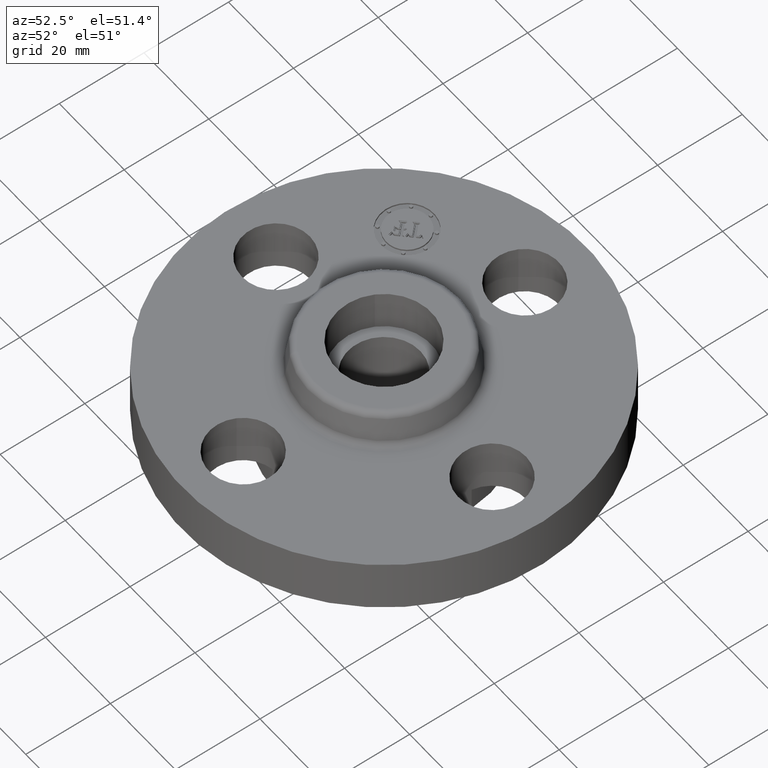
[diagram: clean part render]
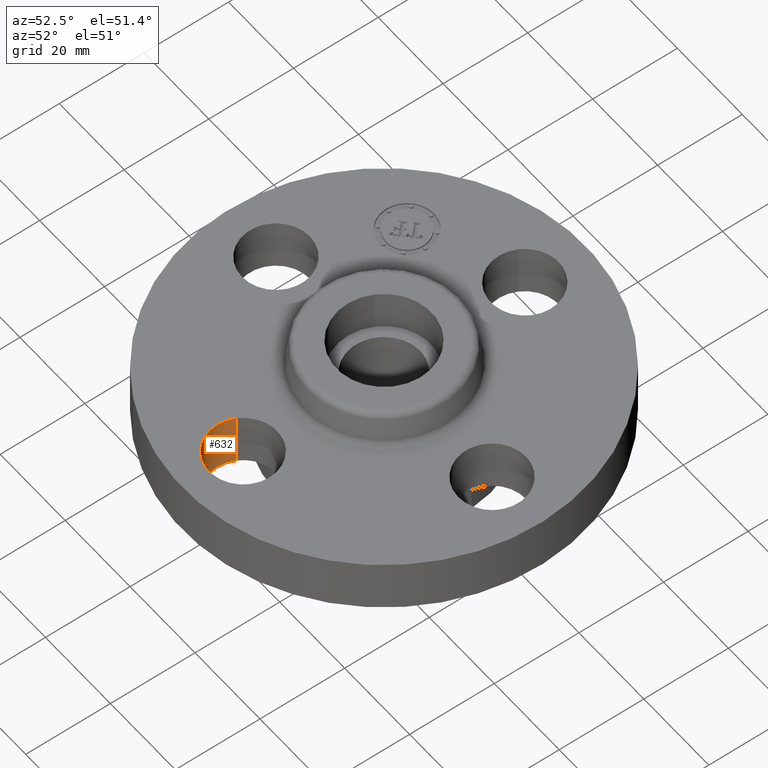
[diagram: same view with one face highlighted and labeled with its STEP entity id]
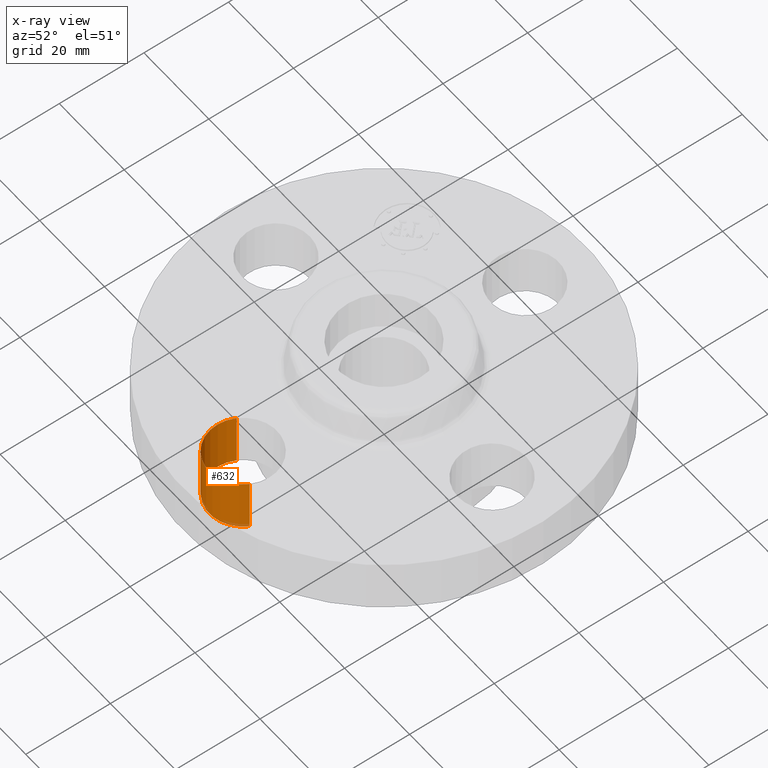
[diagram: x-ray of the same camera — body ghosted, the highlighted face saturated]
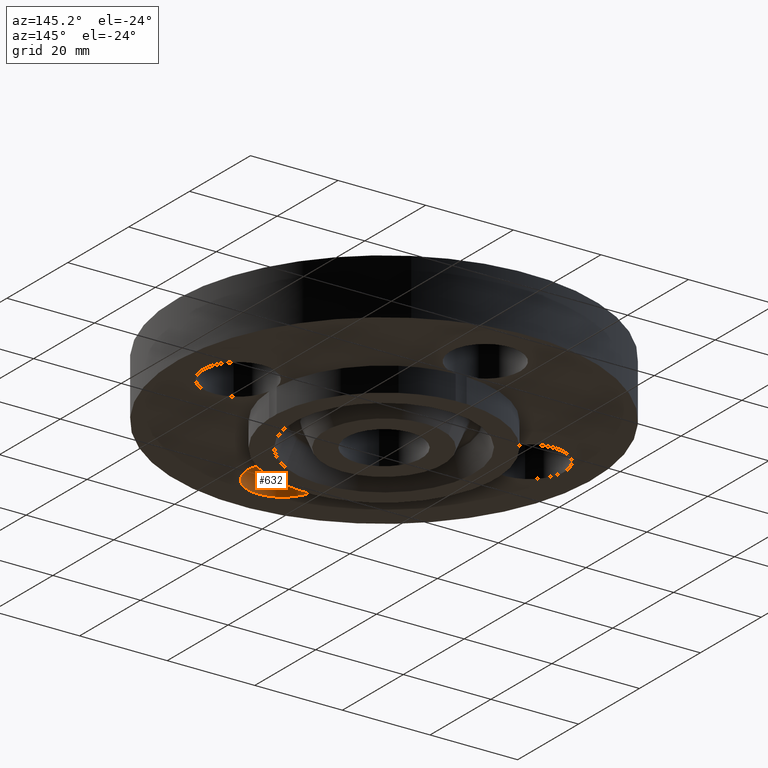
[diagram: same view with one face highlighted and labeled with its STEP entity id]
A machine part, auxiliary view. The second image highlights one B-rep face of the part: STEP entity #632.
The next image is the same camera in x-ray: the body ghosted, the highlighted face saturated — about 3% of this face is hidden behind the body in this view.
A second angle (auxiliary view) of the same face is appended — the face is thin or edge-on in the first view.
In plain terms, the highlighted cylindrical surface (partial cylindrical patch) has radius 8.001 mm, axis along (-0, 0, -1).
Its self-contained STEP definition (entity closure, byte-faithful):
#528=AXIS2_PLACEMENT_3D('Circle Axis2P3D',#526,#527,$) ;
#605=AXIS2_PLACEMENT_3D('Cylinder Axis2P3D',#602,#603,#604) ;
#623=AXIS2_PLACEMENT_3D('Circle Axis2P3D',#621,#622,$) ;
#523=CARTESIAN_POINT('Vertex',(-0.276438506997,-1.15898095534,0.)) ;
#526=CARTESIAN_POINT('Axis2P3D Location',(0.,-1.31000000001,0.)) ;
#530=CARTESIAN_POINT('Vertex',(0.276438506997,-1.46101904467,0.)) ;
#602=CARTESIAN_POINT('Axis2P3D Location',(1.60428730689E-016,-1.31000000001,0.496062992128)) ;
#607=CARTESIAN_POINT('Line Origine',(0.276438506997,-1.46101904467,0.140500000001)) ;
#611=CARTESIAN_POINT('Vertex',(0.276438506997,-1.46101904467,0.500000000002)) ;
#614=CARTESIAN_POINT('Line Origine',(-0.276438506997,-1.15898095534,0.140500000001)) ;
#618=CARTESIAN_POINT('Vertex',(-0.276438506997,-1.15898095534,0.500000000002)) ;
#621=CARTESIAN_POINT('Axis2P3D Location',(1.60428730689E-016,-1.31000000001,0.500000000002)) ;
#527=DIRECTION('Axis2P3D Direction',(0.,0.,-0.0393700787402)) ;
#603=DIRECTION('Axis2P3D Direction',(-0.,0.,-0.0393700787402)) ;
#604=DIRECTION('Axis2P3D XDirection',(-0.0345504945626,0.0188750212049,0.)) ;
#608=DIRECTION('Vector Direction',(0.,0.,-0.0393700787402)) ;
#615=DIRECTION('Vector Direction',(0.,0.,-0.0393700787402)) ;
#622=DIRECTION('Axis2P3D Direction',(-0.,0.,-0.0393700787402)) ;
#609=VECTOR('Line Direction',#608,0.0393700787402) ;
#616=VECTOR('Line Direction',#615,0.0393700787402) ;
#627=ORIENTED_EDGE('',*,*,#613,.F.) ;
#628=ORIENTED_EDGE('',*,*,#532,.T.) ;
#629=ORIENTED_EDGE('',*,*,#620,.T.) ;
#630=ORIENTED_EDGE('',*,*,#625,.F.) ;
#632=ADVANCED_FACE('PartBody',(#631),#606,.F.) ;
#529=CIRCLE('generated circle',#528,0.315000000001) ;
#624=CIRCLE('generated circle',#623,0.315000000001) ;
#606=CYLINDRICAL_SURFACE('generated cylinder',#605,0.315000000001) ;
#532=EDGE_CURVE('',#531,#524,#529,.T.) ;
#613=EDGE_CURVE('',#531,#612,#610,.F.) ;
#620=EDGE_CURVE('',#524,#619,#617,.F.) ;
#625=EDGE_CURVE('',#612,#619,#624,.T.) ;
#626=EDGE_LOOP('',(#627,#628,#629,#630)) ;
#631=FACE_OUTER_BOUND('',#626,.T.) ;
#610=LINE('Line',#607,#609) ;
#617=LINE('Line',#614,#616) ;
#524=VERTEX_POINT('',#523) ;
#531=VERTEX_POINT('',#530) ;
#612=VERTEX_POINT('',#611) ;
#619=VERTEX_POINT('',#618) ;